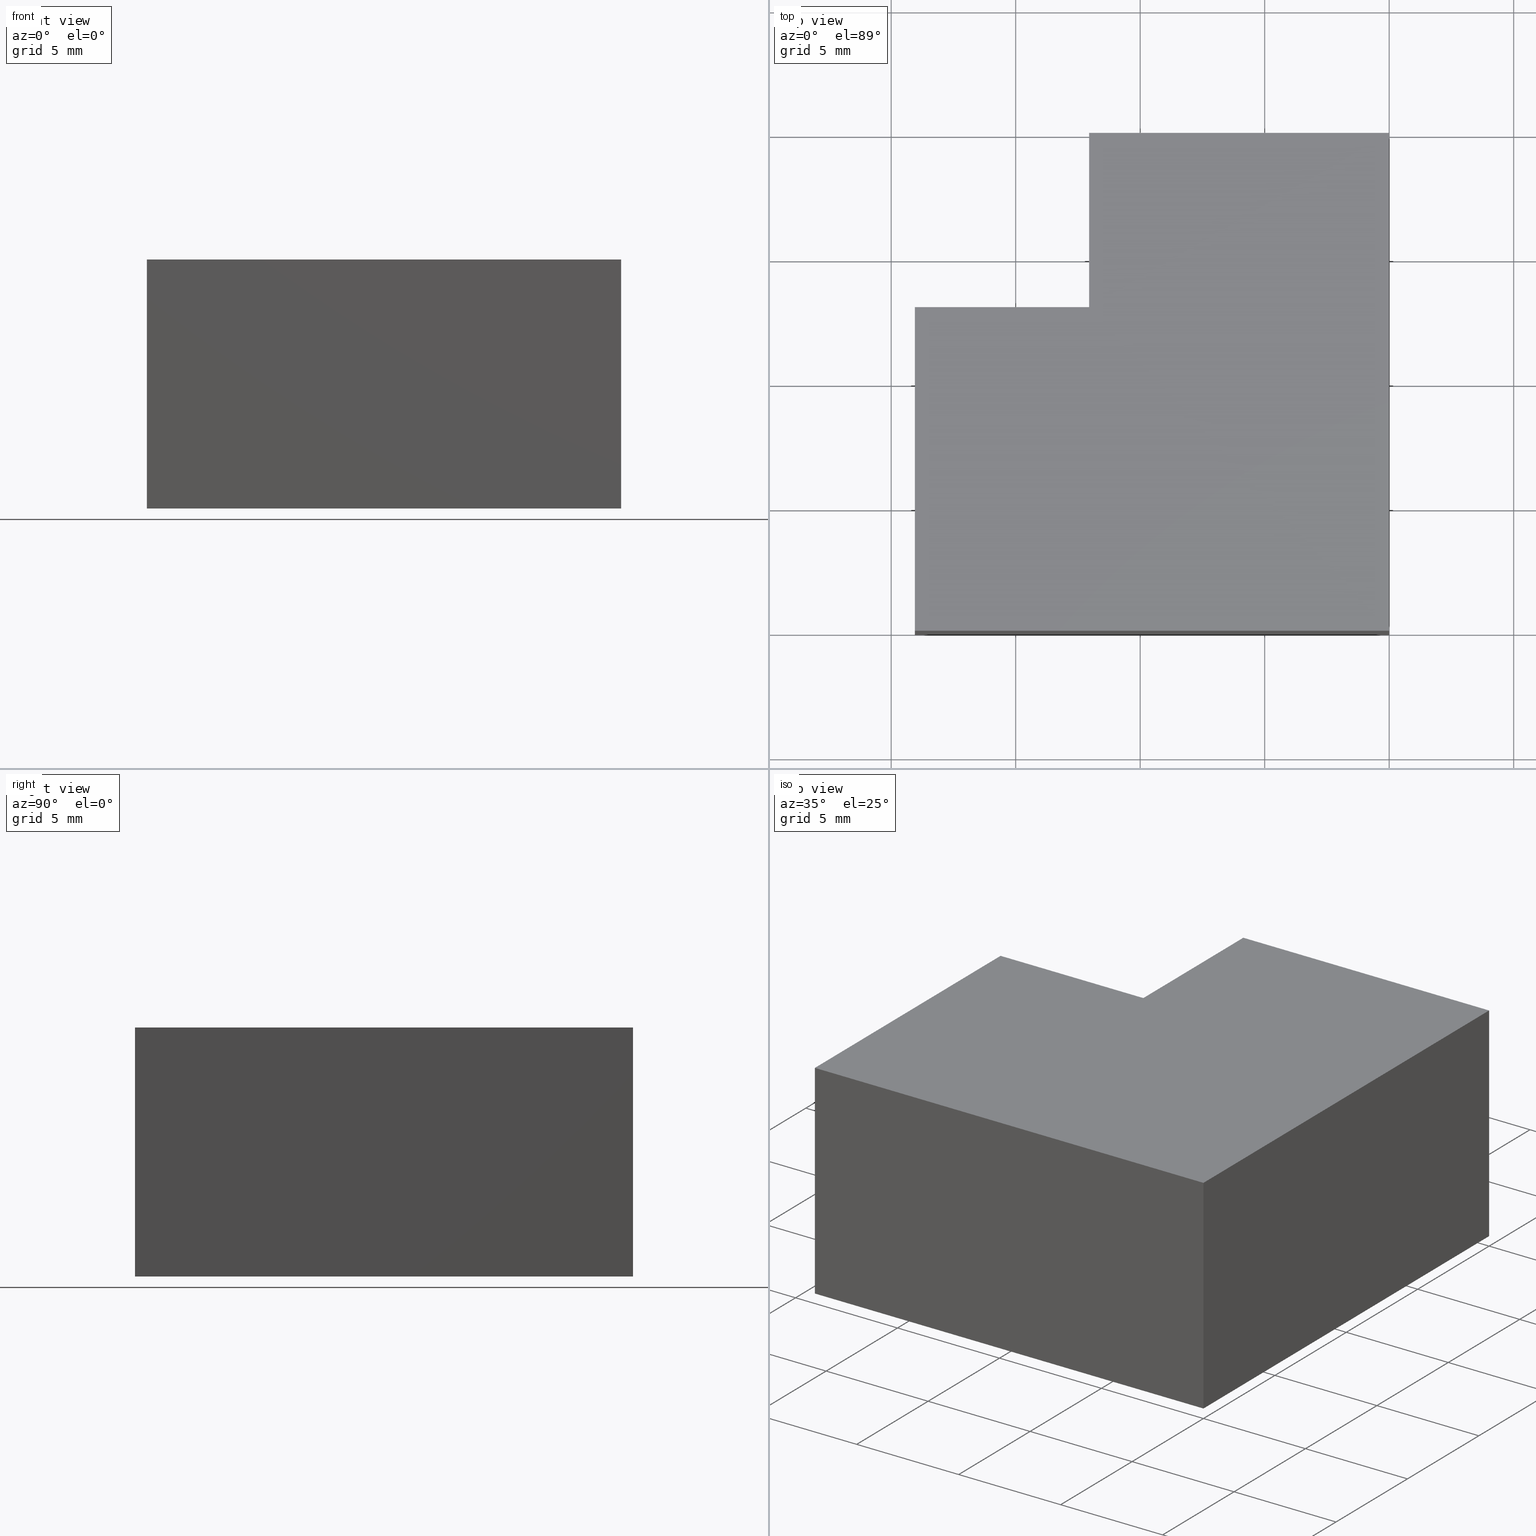
[diagram: canonical four-view strip — front | top / right | iso, engineering-drawing reading convention]
A machine part, canonical four-view strip (front | top / right | iso — engineering-drawing reading convention). The complete STEP part file that produces these views, byte-faithful:
ISO-10303-21;
HEADER;
/* Generated by software containing ST-Developer
 * from STEP Tools, Inc. (www.steptools.com) 
 */

FILE_DESCRIPTION(
/* description */ (''),
/* implementation_level */ '2;1');

FILE_NAME(
/* name */ 'E_3_01_04_16_00_WKZ-0101.stp',
/* time_stamp */ '2025-11-24T11:33:44+01:00',
/* author */ ('d.fischer'),
/* organization */ (''),
/* preprocessor_version */ 'ST-DEVELOPER v20',
/* originating_system */ 'Autodesk Inventor 2025',
/* authorisation */ '');

FILE_SCHEMA (('AUTOMOTIVE_DESIGN { 1 0 10303 214 3 1 1 }'));
ENDSEC;

DATA;
#10=MECHANICAL_DESIGN_GEOMETRIC_PRESENTATION_REPRESENTATION('',(#14,#15),
#259);
#11=SHAPE_REPRESENTATION_RELATIONSHIP('SRR','None',#266,#12);
#12=ADVANCED_BREP_SHAPE_REPRESENTATION('',(#13),#258);
#13=MANIFOLD_SOLID_BREP('Volumenk\X\F6rper1',#150);
#14=STYLED_ITEM('',(#276),#148);
#15=STYLED_ITEM('',(#275),#13);
#16=FACE_OUTER_BOUND('',#24,.T.);
#17=FACE_OUTER_BOUND('',#25,.T.);
#18=FACE_OUTER_BOUND('',#26,.T.);
#19=FACE_OUTER_BOUND('',#27,.T.);
#20=FACE_OUTER_BOUND('',#28,.T.);
#21=FACE_OUTER_BOUND('',#29,.T.);
#22=FACE_OUTER_BOUND('',#30,.T.);
#23=FACE_OUTER_BOUND('',#31,.T.);
#24=EDGE_LOOP('',(#98,#99,#100,#101,#102,#103));
#25=EDGE_LOOP('',(#104,#105,#106,#107));
#26=EDGE_LOOP('',(#108,#109,#110,#111));
#27=EDGE_LOOP('',(#112,#113,#114,#115));
#28=EDGE_LOOP('',(#116,#117,#118,#119));
#29=EDGE_LOOP('',(#120,#121,#122,#123));
#30=EDGE_LOOP('',(#124,#125,#126,#127));
#31=EDGE_LOOP('',(#128,#129,#130,#131,#132,#133));
#32=LINE('',#221,#50);
#33=LINE('',#223,#51);
#34=LINE('',#225,#52);
#35=LINE('',#227,#53);
#36=LINE('',#229,#54);
#37=LINE('',#230,#55);
#38=LINE('',#234,#56);
#39=LINE('',#235,#57);
#40=LINE('',#236,#58);
#41=LINE('',#239,#59);
#42=LINE('',#240,#60);
#43=LINE('',#243,#61);
#44=LINE('',#244,#62);
#45=LINE('',#247,#63);
#46=LINE('',#248,#64);
#47=LINE('',#251,#65);
#48=LINE('',#252,#66);
#49=LINE('',#254,#67);
#50=VECTOR('',#185,10.);
#51=VECTOR('',#186,10.);
#52=VECTOR('',#187,10.);
#53=VECTOR('',#188,10.);
#54=VECTOR('',#189,10.);
#55=VECTOR('',#190,10.);
#56=VECTOR('',#193,10.);
#57=VECTOR('',#194,10.);
#58=VECTOR('',#195,10.);
#59=VECTOR('',#198,10.);
#60=VECTOR('',#199,10.);
#61=VECTOR('',#202,10.);
#62=VECTOR('',#203,10.);
#63=VECTOR('',#206,10.);
#64=VECTOR('',#207,10.);
#65=VECTOR('',#210,10.);
#66=VECTOR('',#211,10.);
#67=VECTOR('',#214,10.);
#68=VERTEX_POINT('',#219);
#69=VERTEX_POINT('',#220);
#70=VERTEX_POINT('',#222);
#71=VERTEX_POINT('',#224);
#72=VERTEX_POINT('',#226);
#73=VERTEX_POINT('',#228);
#74=VERTEX_POINT('',#232);
#75=VERTEX_POINT('',#233);
#76=VERTEX_POINT('',#238);
#77=VERTEX_POINT('',#242);
#78=VERTEX_POINT('',#246);
#79=VERTEX_POINT('',#250);
#80=EDGE_CURVE('',#68,#69,#32,.T.);
#81=EDGE_CURVE('',#70,#68,#33,.T.);
#82=EDGE_CURVE('',#71,#70,#34,.T.);
#83=EDGE_CURVE('',#72,#71,#35,.T.);
#84=EDGE_CURVE('',#73,#72,#36,.T.);
#85=EDGE_CURVE('',#69,#73,#37,.T.);
#86=EDGE_CURVE('',#74,#75,#38,.T.);
#87=EDGE_CURVE('',#75,#71,#39,.T.);
#88=EDGE_CURVE('',#74,#70,#40,.T.);
#89=EDGE_CURVE('',#75,#76,#41,.T.);
#90=EDGE_CURVE('',#76,#72,#42,.T.);
#91=EDGE_CURVE('',#76,#77,#43,.T.);
#92=EDGE_CURVE('',#77,#73,#44,.T.);
#93=EDGE_CURVE('',#77,#78,#45,.T.);
#94=EDGE_CURVE('',#78,#69,#46,.T.);
#95=EDGE_CURVE('',#78,#79,#47,.T.);
#96=EDGE_CURVE('',#68,#79,#48,.T.);
#97=EDGE_CURVE('',#79,#74,#49,.T.);
#98=ORIENTED_EDGE('',*,*,#80,.F.);
#99=ORIENTED_EDGE('',*,*,#81,.F.);
#100=ORIENTED_EDGE('',*,*,#82,.F.);
#101=ORIENTED_EDGE('',*,*,#83,.F.);
#102=ORIENTED_EDGE('',*,*,#84,.F.);
#103=ORIENTED_EDGE('',*,*,#85,.F.);
#104=ORIENTED_EDGE('',*,*,#86,.T.);
#105=ORIENTED_EDGE('',*,*,#87,.T.);
#106=ORIENTED_EDGE('',*,*,#82,.T.);
#107=ORIENTED_EDGE('',*,*,#88,.F.);
#108=ORIENTED_EDGE('',*,*,#89,.T.);
#109=ORIENTED_EDGE('',*,*,#90,.T.);
#110=ORIENTED_EDGE('',*,*,#83,.T.);
#111=ORIENTED_EDGE('',*,*,#87,.F.);
#112=ORIENTED_EDGE('',*,*,#91,.T.);
#113=ORIENTED_EDGE('',*,*,#92,.T.);
#114=ORIENTED_EDGE('',*,*,#84,.T.);
#115=ORIENTED_EDGE('',*,*,#90,.F.);
#116=ORIENTED_EDGE('',*,*,#93,.T.);
#117=ORIENTED_EDGE('',*,*,#94,.T.);
#118=ORIENTED_EDGE('',*,*,#85,.T.);
#119=ORIENTED_EDGE('',*,*,#92,.F.);
#120=ORIENTED_EDGE('',*,*,#95,.T.);
#121=ORIENTED_EDGE('',*,*,#96,.F.);
#122=ORIENTED_EDGE('',*,*,#80,.T.);
#123=ORIENTED_EDGE('',*,*,#94,.F.);
#124=ORIENTED_EDGE('',*,*,#97,.T.);
#125=ORIENTED_EDGE('',*,*,#88,.T.);
#126=ORIENTED_EDGE('',*,*,#81,.T.);
#127=ORIENTED_EDGE('',*,*,#96,.T.);
#128=ORIENTED_EDGE('',*,*,#86,.F.);
#129=ORIENTED_EDGE('',*,*,#97,.F.);
#130=ORIENTED_EDGE('',*,*,#95,.F.);
#131=ORIENTED_EDGE('',*,*,#93,.F.);
#132=ORIENTED_EDGE('',*,*,#91,.F.);
#133=ORIENTED_EDGE('',*,*,#89,.F.);
#134=PLANE('',#173);
#135=PLANE('',#174);
#136=PLANE('',#175);
#137=PLANE('',#176);
#138=PLANE('',#177);
#139=PLANE('',#178);
#140=PLANE('',#179);
#141=PLANE('',#180);
#142=ADVANCED_FACE('',(#16),#134,.F.);
#143=ADVANCED_FACE('',(#17),#135,.T.);
#144=ADVANCED_FACE('',(#18),#136,.T.);
#145=ADVANCED_FACE('',(#19),#137,.T.);
#146=ADVANCED_FACE('',(#20),#138,.T.);
#147=ADVANCED_FACE('',(#21),#139,.T.);
#148=ADVANCED_FACE('',(#22),#140,.T.);
#149=ADVANCED_FACE('',(#23),#141,.T.);
#150=CLOSED_SHELL('',(#142,#143,#144,#145,#146,#147,#148,#149));
#151=DERIVED_UNIT_ELEMENT(#154,1.);
#152=DERIVED_UNIT_ELEMENT(#261,-3.);
#153=DIMENSIONAL_EXPONENTS(0.,1.,0.,0.,0.,0.,0.);
#154=(
CONVERSION_BASED_UNIT('gram',#156)
MASS_UNIT()
NAMED_UNIT(#153)
);
#155=(
MASS_UNIT()
NAMED_UNIT(*)
SI_UNIT(.KILO.,.GRAM.)
);
#156=MASS_MEASURE_WITH_UNIT(MASS_MEASURE(0.001),#155);
#157=DERIVED_UNIT((#151,#152));
#158=MEASURE_REPRESENTATION_ITEM('density measure',
POSITIVE_RATIO_MEASURE(8.03),#157);
#159=PROPERTY_DEFINITION_REPRESENTATION(#164,#161);
#160=PROPERTY_DEFINITION_REPRESENTATION(#165,#162);
#161=REPRESENTATION('material name',(#163),#258);
#162=REPRESENTATION('density',(#158),#258);
#163=DESCRIPTIVE_REPRESENTATION_ITEM('1.4301','1.4301');
#164=PROPERTY_DEFINITION('material property','material name',#268);
#165=PROPERTY_DEFINITION('material property','density of part',#268);
#166=DATE_TIME_ROLE('creation_date');
#167=APPLIED_DATE_AND_TIME_ASSIGNMENT(#168,#166,(#268));
#168=DATE_AND_TIME(#169,#170);
#169=CALENDAR_DATE(2011,20,10);
#170=LOCAL_TIME(0,0,0.,#171);
#171=COORDINATED_UNIVERSAL_TIME_OFFSET(0,0,.BEHIND.);
#172=AXIS2_PLACEMENT_3D('',#217,#181,#182);
#173=AXIS2_PLACEMENT_3D('',#218,#183,#184);
#174=AXIS2_PLACEMENT_3D('',#231,#191,#192);
#175=AXIS2_PLACEMENT_3D('',#237,#196,#197);
#176=AXIS2_PLACEMENT_3D('',#241,#200,#201);
#177=AXIS2_PLACEMENT_3D('',#245,#204,#205);
#178=AXIS2_PLACEMENT_3D('',#249,#208,#209);
#179=AXIS2_PLACEMENT_3D('',#253,#212,#213);
#180=AXIS2_PLACEMENT_3D('',#255,#215,#216);
#181=DIRECTION('axis',(0.,0.,1.));
#182=DIRECTION('refdir',(1.,0.,0.));
#183=DIRECTION('center_axis',(0.,0.,1.));
#184=DIRECTION('ref_axis',(1.,0.,0.));
#185=DIRECTION('',(-2.77555756156289E-16,1.,0.));
#186=DIRECTION('',(1.,9.83620961563794E-17,0.));
#187=DIRECTION('',(1.70803542250024E-16,-1.,0.));
#188=DIRECTION('',(-1.,-6.34413156928661E-16,0.));
#189=DIRECTION('',(0.,-1.,0.));
#190=DIRECTION('',(-1.,-3.68538763361048E-16,0.));
#191=DIRECTION('center_axis',(-1.,-1.70803542250024E-16,0.));
#192=DIRECTION('ref_axis',(0.,0.,1.));
#193=DIRECTION('',(-1.70803542250024E-16,1.,0.));
#194=DIRECTION('',(0.,0.,-1.));
#195=DIRECTION('',(0.,0.,-1.));
#196=DIRECTION('center_axis',(-6.34413156928661E-16,1.,0.));
#197=DIRECTION('ref_axis',(0.,0.,1.));
#198=DIRECTION('',(1.,6.34413156928661E-16,0.));
#199=DIRECTION('',(0.,0.,-1.));
#200=DIRECTION('center_axis',(-1.,0.,0.));
#201=DIRECTION('ref_axis',(0.,0.,1.));
#202=DIRECTION('',(0.,1.,0.));
#203=DIRECTION('',(0.,0.,-1.));
#204=DIRECTION('center_axis',(-3.68538763361048E-16,1.,0.));
#205=DIRECTION('ref_axis',(0.,0.,1.));
#206=DIRECTION('',(1.,3.68538763361048E-16,0.));
#207=DIRECTION('',(0.,0.,-1.));
#208=DIRECTION('center_axis',(1.,2.77555756156289E-16,0.));
#209=DIRECTION('ref_axis',(0.,0.,-1.));
#210=DIRECTION('',(2.77555756156289E-16,-1.,0.));
#211=DIRECTION('',(0.,0.,1.));
#212=DIRECTION('center_axis',(9.83620961563794E-17,-1.,0.));
#213=DIRECTION('ref_axis',(0.,0.,-1.));
#214=DIRECTION('',(-1.,-9.83620961563794E-17,0.));
#215=DIRECTION('center_axis',(0.,0.,1.));
#216=DIRECTION('ref_axis',(1.,0.,0.));
#217=CARTESIAN_POINT('',(0.,0.,0.));
#218=CARTESIAN_POINT('Origin',(-8.89759923175416,9.37259923175416,-5.));
#219=CARTESIAN_POINT('',(5.55111512312578E-15,2.22044604925031E-15,-5.));
#220=CARTESIAN_POINT('',(0.,20.,-5.));
#221=CARTESIAN_POINT('',(0.,20.,-5.));
#222=CARTESIAN_POINT('',(-19.05,3.46648117471286E-16,-5.));
#223=CARTESIAN_POINT('',(5.55111512312578E-15,2.22044604925031E-15,-5.));
#224=CARTESIAN_POINT('',(-19.05,13.,-5.));
#225=CARTESIAN_POINT('',(-19.05,3.46648117471286E-16,-5.));
#226=CARTESIAN_POINT('',(-12.05,13.,-5.));
#227=CARTESIAN_POINT('',(-19.05,13.,-5.));
#228=CARTESIAN_POINT('',(-12.05,20.,-5.));
#229=CARTESIAN_POINT('',(-12.05,13.,-5.));
#230=CARTESIAN_POINT('',(-12.05,20.,-5.));
#231=CARTESIAN_POINT('Origin',(-19.05,3.46648117471286E-16,0.));
#232=CARTESIAN_POINT('',(-19.05,3.46648117471286E-16,5.));
#233=CARTESIAN_POINT('',(-19.05,13.,5.));
#234=CARTESIAN_POINT('',(-19.05,3.46648117471286E-16,5.));
#235=CARTESIAN_POINT('',(-19.05,13.,0.));
#236=CARTESIAN_POINT('',(-19.05,3.46648117471286E-16,0.));
#237=CARTESIAN_POINT('Origin',(-19.05,13.,0.));
#238=CARTESIAN_POINT('',(-12.05,13.,5.));
#239=CARTESIAN_POINT('',(-19.05,13.,5.));
#240=CARTESIAN_POINT('',(-12.05,13.,0.));
#241=CARTESIAN_POINT('Origin',(-12.05,13.,0.));
#242=CARTESIAN_POINT('',(-12.05,20.,5.));
#243=CARTESIAN_POINT('',(-12.05,13.,5.));
#244=CARTESIAN_POINT('',(-12.05,20.,0.));
#245=CARTESIAN_POINT('Origin',(-12.05,20.,0.));
#246=CARTESIAN_POINT('',(0.,20.,5.));
#247=CARTESIAN_POINT('',(-12.05,20.,5.));
#248=CARTESIAN_POINT('',(0.,20.,0.));
#249=CARTESIAN_POINT('Origin',(0.,20.,0.));
#250=CARTESIAN_POINT('',(5.55111512312578E-15,2.22044604925031E-15,5.));
#251=CARTESIAN_POINT('',(0.,20.,5.));
#252=CARTESIAN_POINT('',(5.55111512312578E-15,2.22044604925031E-15,0.));
#253=CARTESIAN_POINT('Origin',(5.55111512312578E-15,2.22044604925031E-15,
0.));
#254=CARTESIAN_POINT('',(5.55111512312578E-15,2.22044604925031E-15,5.));
#255=CARTESIAN_POINT('Origin',(-8.89759923175416,9.37259923175416,5.));
#256=UNCERTAINTY_MEASURE_WITH_UNIT(LENGTH_MEASURE(0.01),#260,
'DISTANCE_ACCURACY_VALUE',
'Maximum model space distance between geometric entities at asserted c
onnectivities');
#257=UNCERTAINTY_MEASURE_WITH_UNIT(LENGTH_MEASURE(0.01),#260,
'DISTANCE_ACCURACY_VALUE',
'Maximum model space distance between geometric entities at asserted c
onnectivities');
#258=(
GEOMETRIC_REPRESENTATION_CONTEXT(3)
GLOBAL_UNCERTAINTY_ASSIGNED_CONTEXT((#256))
GLOBAL_UNIT_ASSIGNED_CONTEXT((#260,#262,#263))
REPRESENTATION_CONTEXT('','3D')
);
#259=(
GEOMETRIC_REPRESENTATION_CONTEXT(3)
GLOBAL_UNCERTAINTY_ASSIGNED_CONTEXT((#257))
GLOBAL_UNIT_ASSIGNED_CONTEXT((#260,#262,#263))
REPRESENTATION_CONTEXT('','3D')
);
#260=(
LENGTH_UNIT()
NAMED_UNIT(*)
SI_UNIT(.MILLI.,.METRE.)
);
#261=(
LENGTH_UNIT()
NAMED_UNIT(*)
SI_UNIT(.CENTI.,.METRE.)
);
#262=(
NAMED_UNIT(*)
PLANE_ANGLE_UNIT()
SI_UNIT($,.RADIAN.)
);
#263=(
NAMED_UNIT(*)
SI_UNIT($,.STERADIAN.)
SOLID_ANGLE_UNIT()
);
#264=SHAPE_DEFINITION_REPRESENTATION(#265,#266);
#265=PRODUCT_DEFINITION_SHAPE('',$,#268);
#266=SHAPE_REPRESENTATION('',(#172),#258);
#267=PRODUCT_DEFINITION_CONTEXT('part definition',#272,'design');
#268=PRODUCT_DEFINITION('WKZ-0101','E_3_01_04_16_00_WKZ-0101',#269,#267);
#269=PRODUCT_DEFINITION_FORMATION('',$,#274);
#270=PRODUCT_RELATED_PRODUCT_CATEGORY('E_3_01_04_16_00_WKZ-0101',
'E_3_01_04_16_00_WKZ-0101',(#274));
#271=APPLICATION_PROTOCOL_DEFINITION('international standard',
'automotive_design',2009,#272);
#272=APPLICATION_CONTEXT(
'Core Data for Automotive Mechanical Design Process');
#273=PRODUCT_CONTEXT('part definition',#272,'mechanical');
#274=PRODUCT('WKZ-0101','E_3_01_04_16_00_WKZ-0101',$,(#273));
#275=PRESENTATION_STYLE_ASSIGNMENT((#277));
#276=PRESENTATION_STYLE_ASSIGNMENT((#278));
#277=SURFACE_STYLE_USAGE(.BOTH.,#281);
#278=SURFACE_STYLE_USAGE(.BOTH.,#282);
#279=SURFACE_STYLE_RENDERING_WITH_PROPERTIES($,#289,(#280));
#280=SURFACE_STYLE_TRANSPARENT(0.);
#281=SURFACE_SIDE_STYLE('',(#283,#279));
#282=SURFACE_SIDE_STYLE('',(#284));
#283=SURFACE_STYLE_FILL_AREA(#285);
#284=SURFACE_STYLE_FILL_AREA(#286);
#285=FILL_AREA_STYLE('',(#287));
#286=FILL_AREA_STYLE('',(#288));
#287=FILL_AREA_STYLE_COLOUR('',#289);
#288=FILL_AREA_STYLE_COLOUR('',#290);
#289=COLOUR_RGB('',0.92156862745098,0.92156862745098,0.92156862745098);
#290=COLOUR_RGB('',0.16078431372549,0.16078431372549,0.16078431372549);
ENDSEC;
END-ISO-10303-21;
